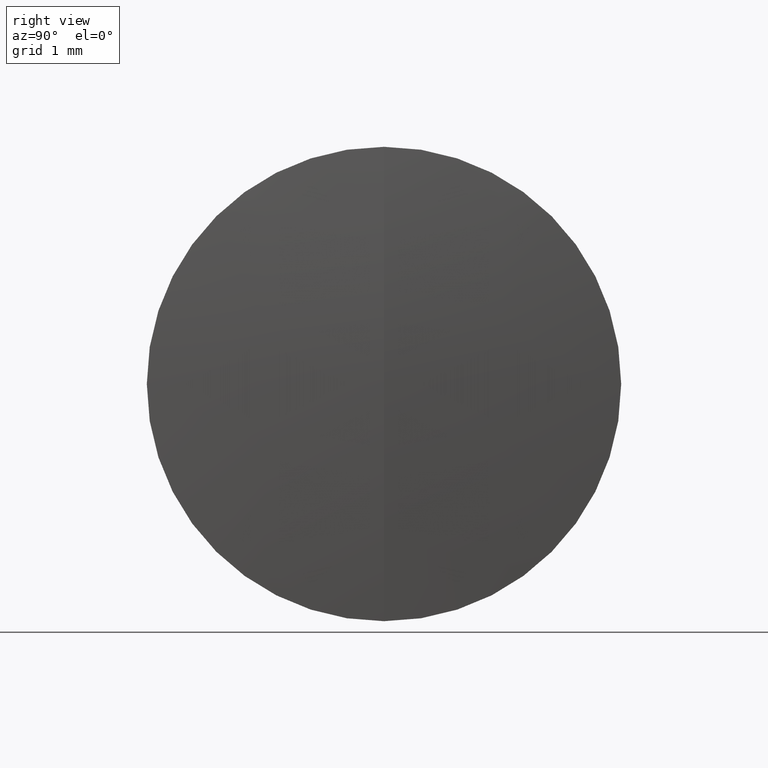
[diagram: clean part render]
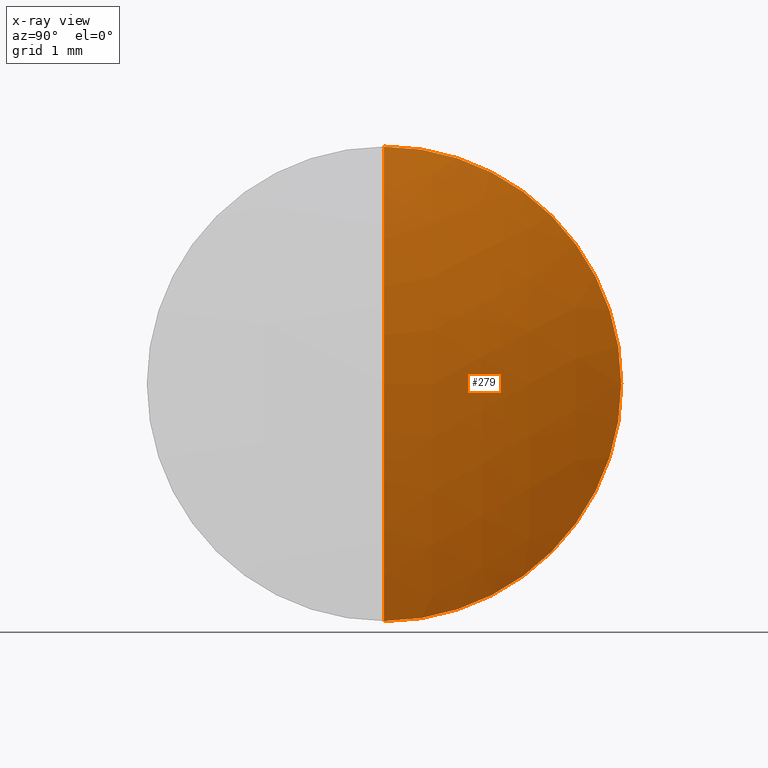
[diagram: x-ray — body ghosted, one internal face saturated and labeled with its STEP entity id]
A machine part, right view, then the same camera in x-ray: the body is ghosted and one INTERNAL B-rep face — a face not visible from any outside direction — is saturated and labeled: STEP entity #279.
In plain terms, the highlighted spherical surface has radius 7.8 mm.
Its self-contained STEP definition (entity closure, byte-faithful):
#2 = EDGE_CURVE ( 'NONE', #155, #47, #7, .T. ) ;
#7 = CIRCLE ( 'NONE', #341, 7.800000000000546900 ) ;
#15 = AXIS2_PLACEMENT_3D ( 'NONE', #230, #48, #202 ) ;
#47 = VERTEX_POINT ( 'NONE', #88 ) ;
#48 = DIRECTION ( 'NONE',  ( -0.0000000000000000000, 1.000000000000000000, 1.224646799147353200E-016 ) ) ;
#60 = CIRCLE ( 'NONE', #78, 3.175000000000000300 ) ;
#64 = EDGE_LOOP ( 'NONE', ( #147, #104, #85 ) ) ;
#76 = DIRECTION ( 'NONE',  ( 0.0000000000000000000, 0.0000000000000000000, 1.000000000000000000 ) ) ;
#78 = AXIS2_PLACEMENT_3D ( 'NONE', #103, #254, #76 ) ;
#83 = AXIS2_PLACEMENT_3D ( 'NONE', #161, #229, #176 ) ;
#85 = ORIENTED_EDGE ( 'NONE', *, *, #288, .F. ) ;
#88 = CARTESIAN_POINT ( 'NONE',  ( 262.9052741446802200, 0.0000000000000000000, 3.175000000000000300 ) ) ;
#89 = DIRECTION ( 'NONE',  ( 0.0000000000000000000, 0.0000000000000000000, -1.000000000000000000 ) ) ;
#103 = CARTESIAN_POINT ( 'NONE',  ( 262.9052741446802200, 0.0000000000000000000, 0.0000000000000000000 ) ) ;
#104 = ORIENTED_EDGE ( 'NONE', *, *, #315, .T. ) ;
#114 = DIRECTION ( 'NONE',  ( 0.0000000000000000000, -1.000000000000000000, 0.0000000000000000000 ) ) ;
#135 = FACE_OUTER_BOUND ( 'NONE', #64, .T. ) ;
#147 = ORIENTED_EDGE ( 'NONE', *, *, #2, .F. ) ;
#155 = VERTEX_POINT ( 'NONE', #262 ) ;
#157 = CARTESIAN_POINT ( 'NONE',  ( 262.9052741446802200, 3.888253587292847100E-016, -3.175000000000000700 ) ) ;
#161 = CARTESIAN_POINT ( 'NONE',  ( 255.7807127546711300, 0.0000000000000000000, 0.0000000000000000000 ) ) ;
#176 = DIRECTION ( 'NONE',  ( 0.0000000000000000000, 0.0000000000000000000, 1.000000000000000000 ) ) ;
#180 = VERTEX_POINT ( 'NONE', #157 ) ;
#202 = DIRECTION ( 'NONE',  ( 0.0000000000000000000, -1.224646799147353000E-016, 1.000000000000000000 ) ) ;
#209 = CIRCLE ( 'NONE', #15, 7.800000000000546900 ) ;
#229 = DIRECTION ( 'NONE',  ( 0.0000000000000000000, 1.000000000000000000, 0.0000000000000000000 ) ) ;
#230 = CARTESIAN_POINT ( 'NONE',  ( 255.7807127546711300, 0.0000000000000000000, 0.0000000000000000000 ) ) ;
#254 = DIRECTION ( 'NONE',  ( -1.000000000000000000, -0.0000000000000000000, -0.0000000000000000000 ) ) ;
#262 = CARTESIAN_POINT ( 'NONE',  ( 263.5807127546716500, 0.0000000000000000000, 4.776122516675011600E-016 ) ) ;
#279 = ADVANCED_FACE ( 'NONE', ( #135 ), #322, .T. ) ;
#288 = EDGE_CURVE ( 'NONE', #47, #180, #60, .T. ) ;
#315 = EDGE_CURVE ( 'NONE', #155, #180, #209, .T. ) ;
#320 = CARTESIAN_POINT ( 'NONE',  ( 255.7807127546711300, 0.0000000000000000000, 0.0000000000000000000 ) ) ;
#322 = SPHERICAL_SURFACE ( 'NONE', #83, 7.800000000000546900 ) ;
#341 = AXIS2_PLACEMENT_3D ( 'NONE', #320, #114, #89 ) ;